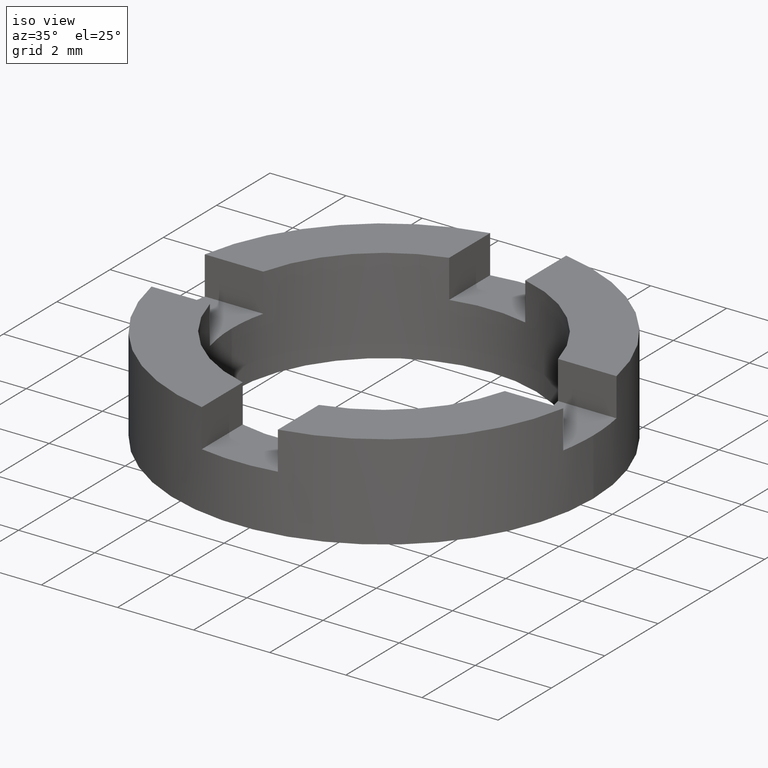
[diagram: clean part render]
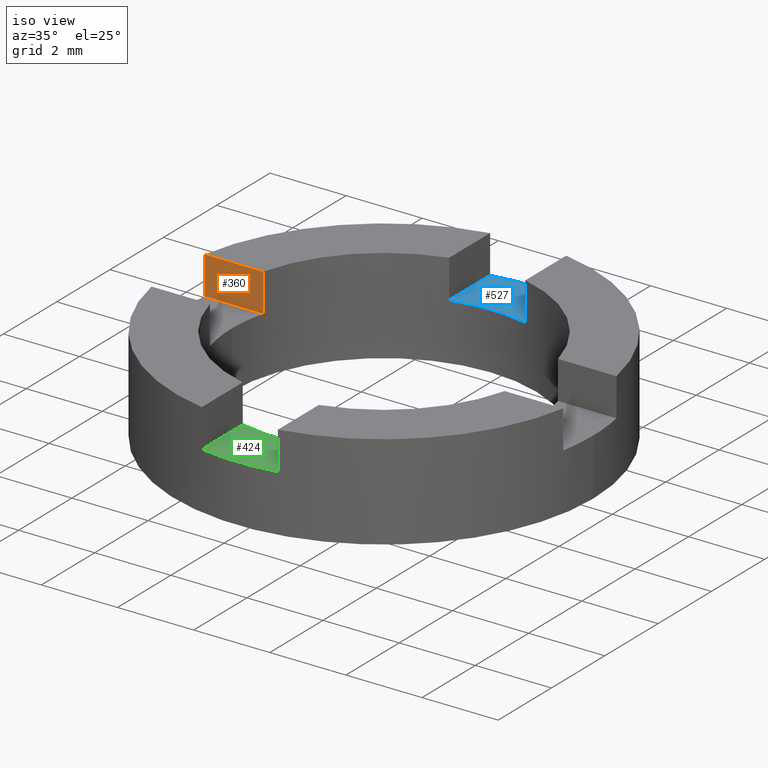
[diagram: same view with three faces highlighted in distinct colors, each labeled with its STEP entity id]
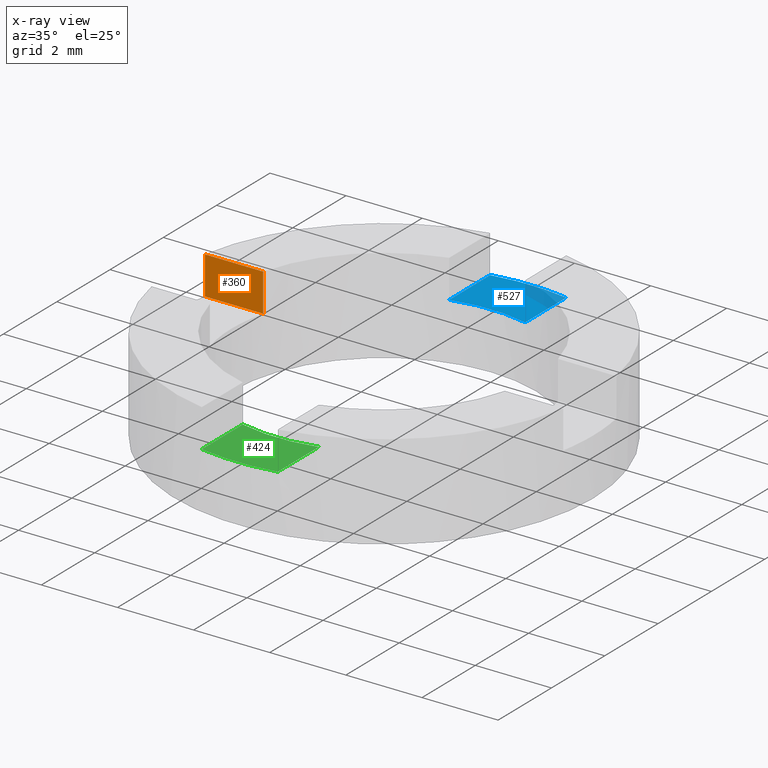
[diagram: x-ray of the same camera — body ghosted, the three highlighted faces saturated]
A machine part, iso view with three faces highlighted in distinct colors.
The next image is the same camera in x-ray (body ghosted, the three faces saturated) — at least one of them is partly hidden behind the body in this view.
Their STEP definitions:

[orange] entity #360 — the highlighted planar face has unit normal (-0, -1, 0).
#7 = LINE ( 'NONE', #628, #770 ) ;
#14 = ORIENTED_EDGE ( 'NONE', *, *, #474, .T. ) ;
#18 = VECTOR ( 'NONE', #510, 1000.000000000000000 ) ;
#36 = CARTESIAN_POINT ( 'NONE',  ( 3.272319284228981178E-15, 1.000000000000000888, 1.500000000000000000 ) ) ;
#62 = EDGE_CURVE ( 'NONE', #688, #230, #570, .T. ) ;
#75 = ORIENTED_EDGE ( 'NONE', *, *, #184, .F. ) ;
#149 = ORIENTED_EDGE ( 'NONE', *, *, #674, .F. ) ;
#157 = EDGE_LOOP ( 'NONE', ( #75, #149, #14, #513 ) ) ;
#177 = VECTOR ( 'NONE', #316, 1000.000000000000000 ) ;
#184 = EDGE_CURVE ( 'NONE', #544, #230, #311, .T. ) ;
#225 = CARTESIAN_POINT ( 'NONE',  ( -5.408326913195980801, 1.000000000000018652, 1.500000000000000000 ) ) ;
#230 = VERTEX_POINT ( 'NONE', #756 ) ;
#263 = FACE_OUTER_BOUND ( 'NONE', #157, .T. ) ;
#292 = VECTOR ( 'NONE', #635, 1000.000000000000000 ) ;
#311 = LINE ( 'NONE', #598, #292 ) ;
#316 = DIRECTION ( 'NONE',  ( -0.000000000000000000, -0.000000000000000000, 1.000000000000000000 ) ) ;
#340 = DIRECTION ( 'NONE',  ( -3.272319284228978023E-15, -1.000000000000000000, 0.000000000000000000 ) ) ;
#342 = AXIS2_PLACEMENT_3D ( 'NONE', #36, #340, #751 ) ;
#343 = CARTESIAN_POINT ( 'NONE',  ( -3.872983346207413025, 1.000000000000013545, 1.500000000000000000 ) ) ;
#360 = ADVANCED_FACE ( 'NONE', ( #263 ), #445, .T. ) ;
#445 = PLANE ( 'NONE',  #342 ) ;
#447 = LINE ( 'NONE', #225, #177 ) ;
#449 = CARTESIAN_POINT ( 'NONE',  ( -5.408326913195980801, 1.000000000000018652, 1.500000000000000000 ) ) ;
#474 = EDGE_CURVE ( 'NONE', #594, #688, #7, .T. ) ;
#510 = DIRECTION ( 'NONE',  ( -0.000000000000000000, -0.000000000000000000, 1.000000000000000000 ) ) ;
#513 = ORIENTED_EDGE ( 'NONE', *, *, #62, .T. ) ;
#541 = CARTESIAN_POINT ( 'NONE',  ( -3.872983346207413025, 1.000000000000013545, 1.500000000000000000 ) ) ;
#544 = VERTEX_POINT ( 'NONE', #677 ) ;
#570 = LINE ( 'NONE', #343, #18 ) ;
#594 = VERTEX_POINT ( 'NONE', #449 ) ;
#598 = CARTESIAN_POINT ( 'NONE',  ( 3.272319284228981178E-15, 1.000000000000000888, 2.500000000000000000 ) ) ;
#628 = CARTESIAN_POINT ( 'NONE',  ( 3.272319284228981178E-15, 1.000000000000000888, 1.500000000000000000 ) ) ;
#635 = DIRECTION ( 'NONE',  ( 1.000000000000000000, -3.272319284228978023E-15, 0.000000000000000000 ) ) ;
#673 = DIRECTION ( 'NONE',  ( 1.000000000000000000, -3.272319284228978023E-15, 0.000000000000000000 ) ) ;
#674 = EDGE_CURVE ( 'NONE', #594, #544, #447, .T. ) ;
#677 = CARTESIAN_POINT ( 'NONE',  ( -5.408326913195980801, 1.000000000000018652, 2.500000000000000000 ) ) ;
#688 = VERTEX_POINT ( 'NONE', #541 ) ;
#751 = DIRECTION ( 'NONE',  ( 1.000000000000000000, -3.272319284228978023E-15, 0.000000000000000000 ) ) ;
#756 = CARTESIAN_POINT ( 'NONE',  ( -3.872983346207413025, 1.000000000000013545, 2.500000000000000000 ) ) ;
#770 = VECTOR ( 'NONE', #673, 1000.000000000000000 ) ;

[blue] entity #527 — the highlighted planar face has unit normal (-0, 0, 1).
#48 = EDGE_CURVE ( 'NONE', #531, #481, #549, .T. ) ;
#109 = PLANE ( 'NONE',  #257 ) ;
#115 = ORIENTED_EDGE ( 'NONE', *, *, #575, .F. ) ;
#125 = CARTESIAN_POINT ( 'NONE',  ( 0.000000000000000000, 0.000000000000000000, 1.500000000000000000 ) ) ;
#142 = CARTESIAN_POINT ( 'NONE',  ( -1.000000000000000888, 3.872983346207416577, 1.500000000000000000 ) ) ;
#143 = CARTESIAN_POINT ( 'NONE',  ( 0.000000000000000000, 0.000000000000000000, 1.500000000000000000 ) ) ;
#168 = ORIENTED_EDGE ( 'NONE', *, *, #48, .T. ) ;
#188 = VECTOR ( 'NONE', #338, 1000.000000000000000 ) ;
#198 = LINE ( 'NONE', #395, #436 ) ;
#224 = CARTESIAN_POINT ( 'NONE',  ( -1.000000000000001332, 5.408326913195983465, 1.500000000000000000 ) ) ;
#253 = ORIENTED_EDGE ( 'NONE', *, *, #687, .T. ) ;
#257 = AXIS2_PLACEMENT_3D ( 'NONE', #143, #313, #357 ) ;
#273 = VERTEX_POINT ( 'NONE', #142 ) ;
#276 = EDGE_LOOP ( 'NONE', ( #115, #752, #253, #168 ) ) ;
#282 = AXIS2_PLACEMENT_3D ( 'NONE', #125, #656, #783 ) ;
#297 = CARTESIAN_POINT ( 'NONE',  ( 0.9999999999999986677, 5.408326913195983465, 1.500000000000000000 ) ) ;
#303 = EDGE_CURVE ( 'NONE', #273, #569, #581, .T. ) ;
#313 = DIRECTION ( 'NONE',  ( -0.000000000000000000, 0.000000000000000000, 1.000000000000000000 ) ) ;
#334 = CARTESIAN_POINT ( 'NONE',  ( 0.000000000000000000, 0.000000000000000000, 1.500000000000000000 ) ) ;
#338 = DIRECTION ( 'NONE',  ( -2.365532012695646217E-16, 1.000000000000000000, 0.000000000000000000 ) ) ;
#357 = DIRECTION ( 'NONE',  ( 1.000000000000000000, 0.000000000000000000, 0.000000000000000000 ) ) ;
#369 = DIRECTION ( 'NONE',  ( -0.000000000000000000, 0.000000000000000000, 1.000000000000000000 ) ) ;
#395 = CARTESIAN_POINT ( 'NONE',  ( 1.000000000000000000, 2.365532012695646217E-16, 1.500000000000000000 ) ) ;
#436 = VECTOR ( 'NONE', #774, 1000.000000000000000 ) ;
#452 = LINE ( 'NONE', #739, #188 ) ;
#481 = VERTEX_POINT ( 'NONE', #224 ) ;
#487 = DIRECTION ( 'NONE',  ( 1.000000000000000000, 0.000000000000000000, 0.000000000000000000 ) ) ;
#527 = ADVANCED_FACE ( 'NONE', ( #772 ), #109, .T. ) ;
#531 = VERTEX_POINT ( 'NONE', #297 ) ;
#549 = CIRCLE ( 'NONE', #762, 5.500000000000000000 ) ;
#569 = VERTEX_POINT ( 'NONE', #596 ) ;
#575 = EDGE_CURVE ( 'NONE', #273, #481, #452, .T. ) ;
#581 = CIRCLE ( 'NONE', #282, 4.000000000000000000 ) ;
#596 = CARTESIAN_POINT ( 'NONE',  ( 0.9999999999999991118, 3.872983346207417465, 1.500000000000000000 ) ) ;
#656 = DIRECTION ( 'NONE',  ( 0.000000000000000000, -0.000000000000000000, -1.000000000000000000 ) ) ;
#687 = EDGE_CURVE ( 'NONE', #569, #531, #198, .T. ) ;
#739 = CARTESIAN_POINT ( 'NONE',  ( -1.000000000000000000, -2.365532012695646217E-16, 1.500000000000000000 ) ) ;
#752 = ORIENTED_EDGE ( 'NONE', *, *, #303, .T. ) ;
#762 = AXIS2_PLACEMENT_3D ( 'NONE', #334, #369, #487 ) ;
#772 = FACE_OUTER_BOUND ( 'NONE', #276, .T. ) ;
#774 = DIRECTION ( 'NONE',  ( -2.365532012695646217E-16, 1.000000000000000000, 0.000000000000000000 ) ) ;
#783 = DIRECTION ( 'NONE',  ( 1.000000000000000000, 6.217248937900876626E-15, 0.000000000000000000 ) ) ;

[green] entity #424 — the highlighted planar face has unit normal (-0, 0, 1).
#4 = VECTOR ( 'NONE', #633, 1000.000000000000000 ) ;
#12 = LINE ( 'NONE', #122, #4 ) ;
#16 = EDGE_CURVE ( 'NONE', #526, #428, #55, .T. ) ;
#55 = CIRCLE ( 'NONE', #619, 5.500000000000000000 ) ;
#59 = CARTESIAN_POINT ( 'NONE',  ( 1.000000000000001332, -5.408326913195983465, 1.500000000000000000 ) ) ;
#89 = CARTESIAN_POINT ( 'NONE',  ( -1.000000000000000000, -2.365532012695646217E-16, 1.500000000000000000 ) ) ;
#104 = DIRECTION ( 'NONE',  ( 1.000000000000000000, 0.000000000000000000, 0.000000000000000000 ) ) ;
#110 = CARTESIAN_POINT ( 'NONE',  ( 1.000000000000000888, -3.872983346207416577, 1.500000000000000000 ) ) ;
#122 = CARTESIAN_POINT ( 'NONE',  ( 1.000000000000000000, 2.365532012695646217E-16, 1.500000000000000000 ) ) ;
#205 = CARTESIAN_POINT ( 'NONE',  ( 0.000000000000000000, 0.000000000000000000, 1.500000000000000000 ) ) ;
#212 = EDGE_CURVE ( 'NONE', #526, #407, #306, .T. ) ;
#214 = PLANE ( 'NONE',  #602 ) ;
#238 = ORIENTED_EDGE ( 'NONE', *, *, #212, .F. ) ;
#247 = CIRCLE ( 'NONE', #466, 4.000000000000000000 ) ;
#258 = ORIENTED_EDGE ( 'NONE', *, *, #483, .T. ) ;
#259 = FACE_OUTER_BOUND ( 'NONE', #319, .T. ) ;
#306 = LINE ( 'NONE', #89, #564 ) ;
#319 = EDGE_LOOP ( 'NONE', ( #238, #760, #534, #258 ) ) ;
#374 = EDGE_CURVE ( 'NONE', #428, #690, #12, .T. ) ;
#378 = DIRECTION ( 'NONE',  ( -0.000000000000000000, 0.000000000000000000, 1.000000000000000000 ) ) ;
#381 = CARTESIAN_POINT ( 'NONE',  ( -0.9999999999999991118, -3.872983346207417465, 1.500000000000000000 ) ) ;
#390 = CARTESIAN_POINT ( 'NONE',  ( 0.000000000000000000, 0.000000000000000000, 1.500000000000000000 ) ) ;
#407 = VERTEX_POINT ( 'NONE', #381 ) ;
#424 = ADVANCED_FACE ( 'NONE', ( #259 ), #214, .T. ) ;
#428 = VERTEX_POINT ( 'NONE', #59 ) ;
#466 = AXIS2_PLACEMENT_3D ( 'NONE', #390, #538, #104 ) ;
#483 = EDGE_CURVE ( 'NONE', #690, #407, #247, .T. ) ;
#526 = VERTEX_POINT ( 'NONE', #642 ) ;
#534 = ORIENTED_EDGE ( 'NONE', *, *, #374, .T. ) ;
#538 = DIRECTION ( 'NONE',  ( 0.000000000000000000, -0.000000000000000000, -1.000000000000000000 ) ) ;
#554 = CARTESIAN_POINT ( 'NONE',  ( 0.000000000000000000, 0.000000000000000000, 1.500000000000000000 ) ) ;
#564 = VECTOR ( 'NONE', #669, 1000.000000000000000 ) ;
#602 = AXIS2_PLACEMENT_3D ( 'NONE', #205, #378, #737 ) ;
#613 = DIRECTION ( 'NONE',  ( -0.000000000000000000, 0.000000000000000000, 1.000000000000000000 ) ) ;
#619 = AXIS2_PLACEMENT_3D ( 'NONE', #554, #613, #647 ) ;
#633 = DIRECTION ( 'NONE',  ( -2.365532012695646217E-16, 1.000000000000000000, 0.000000000000000000 ) ) ;
#642 = CARTESIAN_POINT ( 'NONE',  ( -0.9999999999999986677, -5.408326913195983465, 1.500000000000000000 ) ) ;
#647 = DIRECTION ( 'NONE',  ( 1.000000000000000000, 0.000000000000000000, 0.000000000000000000 ) ) ;
#669 = DIRECTION ( 'NONE',  ( -2.365532012695646217E-16, 1.000000000000000000, 0.000000000000000000 ) ) ;
#690 = VERTEX_POINT ( 'NONE', #110 ) ;
#737 = DIRECTION ( 'NONE',  ( 1.000000000000000000, 0.000000000000000000, 0.000000000000000000 ) ) ;
#760 = ORIENTED_EDGE ( 'NONE', *, *, #16, .T. ) ;